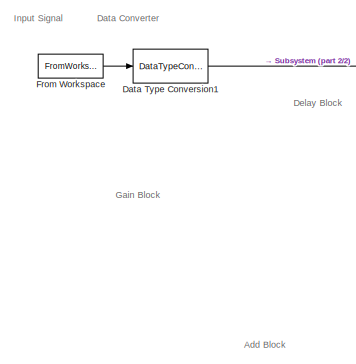
[diagram: root canvas - part 1/2, left side, full height]
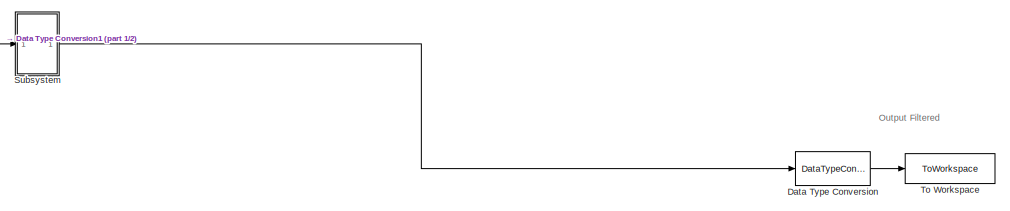
[diagram: root canvas - part 2/2, bottom right region]
MODEL slx_987c6893127b
KIND model
CONFIG AbsTol = auto
CONFIG EnableMultiTasking = off
CONFIG FixedStep = auto
CONFIG MaxStep = auto
CONFIG MinStep = auto
CONFIG RelTol = 1e-3
CONFIG SampleTimeConstraint = Unconstrained
CONFIG SolverName = VariableStepAuto
CONFIG StartTime = 0.0
CONFIG StopTime = 10
BLOCK [DataTypeConversion] Data Type Conversion
  OutDataTypeStr = double
  RndMeth = Floor
  SaturateOnIntegerOverflow = off
BLOCK [DataTypeConversion] Data Type Conversion1
  OutDataTypeStr = fixdt(1,W,D)
  RndMeth = Floor
  SaturateOnIntegerOverflow = off
BLOCK [FromWorkspace] From Workspace
  Interpolate = off
  OutputAfterFinalValue = Setting to zero
  SampleTime = 1
  VariableName = sig_in
  ZeroCross = off
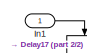
[diagram: Subsystem - part 1/2, top left region]
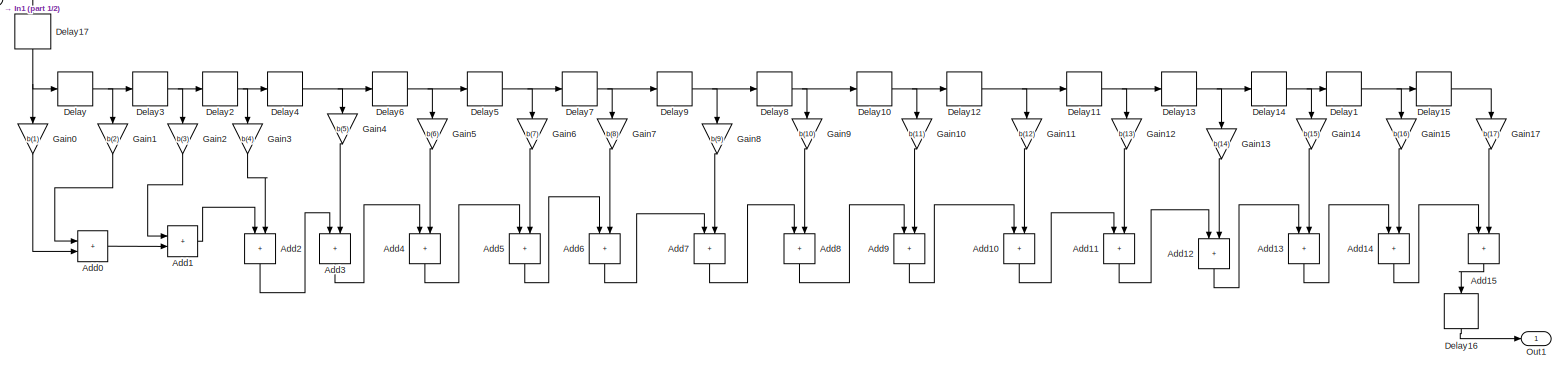
[diagram: Subsystem - part 2/2, most of the canvas]
BLOCK [SubSystem] Subsystem
BLOCK [Sum] Subsystem/Add0
  AccumDataTypeStr = fixdt(1,W,D)
  IconShape = rectangular
  OutDataTypeStr = fixdt(1,W,D)
BLOCK [Sum] Subsystem/Add1
  AccumDataTypeStr = fixdt(1,W,D)
  IconShape = rectangular
  OutDataTypeStr = fixdt(1,W,D)
BLOCK [Sum] Subsystem/Add10
  AccumDataTypeStr = fixdt(1,W,D)
  IconShape = rectangular
  NameLocation = left
  OutDataTypeStr = fixdt(1,W,D)
BLOCK [Sum] Subsystem/Add11
  AccumDataTypeStr = fixdt(1,W,D)
  IconShape = rectangular
  NameLocation = left
  OutDataTypeStr = fixdt(1,W,D)
BLOCK [Sum] Subsystem/Add12
  AccumDataTypeStr = fixdt(1,W,D)
  IconShape = rectangular
  NameLocation = left
  OutDataTypeStr = fixdt(1,W,D)
BLOCK [Sum] Subsystem/Add13
  AccumDataTypeStr = fixdt(1,W,D)
  IconShape = rectangular
  NameLocation = left
  OutDataTypeStr = fixdt(1,W,D)
BLOCK [Sum] Subsystem/Add14
  AccumDataTypeStr = fixdt(1,W,D)
  IconShape = rectangular
  NameLocation = left
  OutDataTypeStr = fixdt(1,W,D)
BLOCK [Sum] Subsystem/Add15
  AccumDataTypeStr = fixdt(1,W,D)
  IconShape = rectangular
  NameLocation = left
  OutDataTypeStr = fixdt(1,W,D)
BLOCK [Sum] Subsystem/Add2
  AccumDataTypeStr = fixdt(1,W,D)
  IconShape = rectangular
  NameLocation = left
  OutDataTypeStr = fixdt(1,W,D)
BLOCK [Sum] Subsystem/Add3
  AccumDataTypeStr = fixdt(1,W,D)
  IconShape = rectangular
  NameLocation = left
  OutDataTypeStr = fixdt(1,W,D)
BLOCK [Sum] Subsystem/Add4
  AccumDataTypeStr = fixdt(1,W,D)
  IconShape = rectangular
  NameLocation = left
  OutDataTypeStr = fixdt(1,W,D)
BLOCK [Sum] Subsystem/Add5
  AccumDataTypeStr = fixdt(1,W,D)
  IconShape = rectangular
  NameLocation = left
  OutDataTypeStr = fixdt(1,W,D)
BLOCK [Sum] Subsystem/Add6
  AccumDataTypeStr = fixdt(1,W,D)
  IconShape = rectangular
  NameLocation = left
  OutDataTypeStr = fixdt(1,W,D)
BLOCK [Sum] Subsystem/Add7
  AccumDataTypeStr = fixdt(1,W,D)
  IconShape = rectangular
  NameLocation = left
  OutDataTypeStr = fixdt(1,W,D)
BLOCK [Sum] Subsystem/Add8
  AccumDataTypeStr = fixdt(1,W,D)
  IconShape = rectangular
  NameLocation = left
  OutDataTypeStr = fixdt(1,W,D)
BLOCK [Sum] Subsystem/Add9
  AccumDataTypeStr = fixdt(1,W,D)
  IconShape = rectangular
  NameLocation = left
  OutDataTypeStr = fixdt(1,W,D)
BLOCK [Delay] Subsystem/Delay
  DelayLength = 1
  InputPortMap = u0
BLOCK [Delay] Subsystem/Delay1
  DelayLength = 1
  InputPortMap = u0
BLOCK [Delay] Subsystem/Delay10
  DelayLength = 1
  InputPortMap = u0
BLOCK [Delay] Subsystem/Delay11
  DelayLength = 1
  InputPortMap = u0
BLOCK [Delay] Subsystem/Delay12
  DelayLength = 1
  InputPortMap = u0
BLOCK [Delay] Subsystem/Delay13
  DelayLength = 1
  InputPortMap = u0
BLOCK [Delay] Subsystem/Delay14
  DelayLength = 1
  InputPortMap = u0
BLOCK [Delay] Subsystem/Delay15
  DelayLength = 1
  InputPortMap = u0
BLOCK [Delay] Subsystem/Delay16
  DelayLength = 1
  InputPortMap = u0
  NameLocation = left
BLOCK [Delay] Subsystem/Delay17
  DelayLength = 1
  InputPortMap = u0
  NameLocation = left
BLOCK [Delay] Subsystem/Delay2
  DelayLength = 1
  InputPortMap = u0
BLOCK [Delay] Subsystem/Delay3
  DelayLength = 1
  InputPortMap = u0
BLOCK [Delay] Subsystem/Delay4
  DelayLength = 1
  InputPortMap = u0
BLOCK [Delay] Subsystem/Delay5
  DelayLength = 1
  InputPortMap = u0
BLOCK [Delay] Subsystem/Delay6
  DelayLength = 1
  InputPortMap = u0
BLOCK [Delay] Subsystem/Delay7
  DelayLength = 1
  InputPortMap = u0
BLOCK [Delay] Subsystem/Delay8
  DelayLength = 1
  InputPortMap = u0
BLOCK [Delay] Subsystem/Delay9
  DelayLength = 1
  InputPortMap = u0
BLOCK [Gain] Subsystem/Gain0
  Gain = b(1)
  NameLocation = left
  OutDataTypeStr = fixdt(1,Wc,Dc)
  ParamDataTypeStr = fixdt(1,Wg,Dg)
BLOCK [Gain] Subsystem/Gain1
  Gain = b(2)
  NameLocation = left
  OutDataTypeStr = fixdt(1,Wc,Dc)
  ParamDataTypeStr = fixdt(1,Wg,Dg)
BLOCK [Gain] Subsystem/Gain10
  Gain = b(11)
  NameLocation = left
  OutDataTypeStr = fixdt(1,Wc,Dc)
  ParamDataTypeStr = fixdt(1,Wg,Dg)
BLOCK [Gain] Subsystem/Gain11
  Gain = b(12)
  NameLocation = left
  OutDataTypeStr = fixdt(1,Wc,Dc)
  ParamDataTypeStr = fixdt(1,Wg,Dg)
BLOCK [Gain] Subsystem/Gain12
  Gain = b(13)
  NameLocation = left
  OutDataTypeStr = fixdt(1,Wc,Dc)
  ParamDataTypeStr = fixdt(1,Wg,Dg)
BLOCK [Gain] Subsystem/Gain13
  Gain = b(14)
  NameLocation = left
  OutDataTypeStr = fixdt(1,Wc,Dc)
  ParamDataTypeStr = fixdt(1,Wg,Dg)
BLOCK [Gain] Subsystem/Gain14
  Gain = b(15)
  NameLocation = left
  OutDataTypeStr = fixdt(1,Wc,Dc)
  ParamDataTypeStr = fixdt(1,Wg,Dg)
BLOCK [Gain] Subsystem/Gain15
  Gain = b(16)
  NameLocation = left
  OutDataTypeStr = fixdt(1,Wc,Dc)
  ParamDataTypeStr = fixdt(1,Wg,Dg)
BLOCK [Gain] Subsystem/Gain17
  Gain = b(17)
  NameLocation = left
  OutDataTypeStr = fixdt(1,Wc,Dc)
  ParamDataTypeStr = fixdt(1,Wg,Dg)
BLOCK [Gain] Subsystem/Gain2
  Gain = b(3)
  NameLocation = left
  OutDataTypeStr = fixdt(1,Wc,Dc)
  ParamDataTypeStr = fixdt(1,Wg,Dg)
BLOCK [Gain] Subsystem/Gain3
  Gain = b(4)
  NameLocation = left
  OutDataTypeStr = fixdt(1,Wc,Dc)
  ParamDataTypeStr = fixdt(1,Wg,Dg)
BLOCK [Gain] Subsystem/Gain4
  Gain = b(5)
  NameLocation = left
  OutDataTypeStr = fixdt(1,Wc,Dc)
  ParamDataTypeStr = fixdt(1,Wg,Dg)
BLOCK [Gain] Subsystem/Gain5
  Gain = b(6)
  NameLocation = left
  OutDataTypeStr = fixdt(1,Wc,Dc)
  ParamDataTypeStr = fixdt(1,Wg,Dg)
BLOCK [Gain] Subsystem/Gain6
  Gain = b(7)
  NameLocation = left
  OutDataTypeStr = fixdt(1,Wc,Dc)
  ParamDataTypeStr = fixdt(1,Wg,Dg)
BLOCK [Gain] Subsystem/Gain7
  Gain = b(8)
  NameLocation = left
  OutDataTypeStr = fixdt(1,Wc,Dc)
  ParamDataTypeStr = fixdt(1,Wg,Dg)
BLOCK [Gain] Subsystem/Gain8
  Gain = b(9)
  NameLocation = left
  OutDataTypeStr = fixdt(1,Wc,Dc)
  ParamDataTypeStr = fixdt(1,Wg,Dg)
BLOCK [Gain] Subsystem/Gain9
  Gain = b(10)
  NameLocation = left
  OutDataTypeStr = fixdt(1,Wc,Dc)
  ParamDataTypeStr = fixdt(1,Wg,Dg)
BLOCK [Inport] Subsystem/In1
BLOCK [Outport] Subsystem/Out1
BLOCK [ToWorkspace] To Workspace
  FixptAsFi = on
  MaxDataPoints = inf
  SampleTime = -1
  VariableName = simout
ANNOTATION (root): Add Block
ANNOTATION (root): Data Converter
ANNOTATION (root): Delay Block
ANNOTATION (root): Gain Block
ANNOTATION (root): Input Signal
ANNOTATION (root): Output Filtered
LINE Data Type Conversion1:1 -> Subsystem:1
LINE Data Type Conversion:1 -> To Workspace:1
LINE From Workspace:1 -> Data Type Conversion1:1
LINE Subsystem/Add0:1 -> Subsystem/Add1:2
LINE Subsystem/Add10:1 -> Subsystem/Add11:1
LINE Subsystem/Add11:1 -> Subsystem/Add12:1
LINE Subsystem/Add12:1 -> Subsystem/Add13:1
LINE Subsystem/Add13:1 -> Subsystem/Add14:1
LINE Subsystem/Add14:1 -> Subsystem/Add15:1
LINE Subsystem/Add15:1 -> Subsystem/Delay16:1
LINE Subsystem/Add1:1 -> Subsystem/Add2:1
LINE Subsystem/Add2:1 -> Subsystem/Add3:1
LINE Subsystem/Add3:1 -> Subsystem/Add4:1
LINE Subsystem/Add4:1 -> Subsystem/Add5:1
LINE Subsystem/Add5:1 -> Subsystem/Add6:1
LINE Subsystem/Add6:1 -> Subsystem/Add7:1
LINE Subsystem/Add7:1 -> Subsystem/Add8:1
LINE Subsystem/Add8:1 -> Subsystem/Add9:1
LINE Subsystem/Add9:1 -> Subsystem/Add10:1
NET Subsystem/Delay10:1 -> Subsystem/Delay12:1, Subsystem/Gain10:1
NET Subsystem/Delay11:1 -> Subsystem/Delay13:1, Subsystem/Gain12:1
NET Subsystem/Delay12:1 -> Subsystem/Delay11:1, Subsystem/Gain11:1
NET Subsystem/Delay13:1 -> Subsystem/Delay14:1, Subsystem/Gain13:1
NET Subsystem/Delay14:1 -> Subsystem/Delay1:1, Subsystem/Gain14:1
LINE Subsystem/Delay15:1 -> Subsystem/Gain17:1
LINE Subsystem/Delay16:1 -> Subsystem/Out1:1
NET Subsystem/Delay17:1 -> Subsystem/Delay:1, Subsystem/Gain0:1
NET Subsystem/Delay1:1 -> Subsystem/Delay15:1, Subsystem/Gain15:1
NET Subsystem/Delay2:1 -> Subsystem/Delay4:1, Subsystem/Gain3:1
NET Subsystem/Delay3:1 -> Subsystem/Delay2:1, Subsystem/Gain2:1
NET Subsystem/Delay4:1 -> Subsystem/Delay6:1, Subsystem/Gain4:1
NET Subsystem/Delay5:1 -> Subsystem/Delay7:1, Subsystem/Gain6:1
NET Subsystem/Delay6:1 -> Subsystem/Delay5:1, Subsystem/Gain5:1
NET Subsystem/Delay7:1 -> Subsystem/Delay9:1, Subsystem/Gain7:1
NET Subsystem/Delay8:1 -> Subsystem/Delay10:1, Subsystem/Gain9:1
NET Subsystem/Delay9:1 -> Subsystem/Delay8:1, Subsystem/Gain8:1
NET Subsystem/Delay:1 -> Subsystem/Delay3:1, Subsystem/Gain1:1
LINE Subsystem/Gain0:1 -> Subsystem/Add0:2
LINE Subsystem/Gain10:1 -> Subsystem/Add9:2
LINE Subsystem/Gain11:1 -> Subsystem/Add10:2
LINE Subsystem/Gain12:1 -> Subsystem/Add11:2
LINE Subsystem/Gain13:1 -> Subsystem/Add12:2
LINE Subsystem/Gain14:1 -> Subsystem/Add13:2
LINE Subsystem/Gain15:1 -> Subsystem/Add14:2
LINE Subsystem/Gain17:1 -> Subsystem/Add15:2
LINE Subsystem/Gain1:1 -> Subsystem/Add0:1
LINE Subsystem/Gain2:1 -> Subsystem/Add1:1
LINE Subsystem/Gain3:1 -> Subsystem/Add2:2
LINE Subsystem/Gain4:1 -> Subsystem/Add3:2
LINE Subsystem/Gain5:1 -> Subsystem/Add4:2
LINE Subsystem/Gain6:1 -> Subsystem/Add5:2
LINE Subsystem/Gain7:1 -> Subsystem/Add6:2
LINE Subsystem/Gain8:1 -> Subsystem/Add7:2
LINE Subsystem/Gain9:1 -> Subsystem/Add8:2
LINE Subsystem/In1:1 -> Subsystem/Delay17:1
LINE Subsystem:1 -> Data Type Conversion:1
note: NET lines group one-source signal fan-out (src -> all destinations, sorted); 1:1 wires keep LINE
